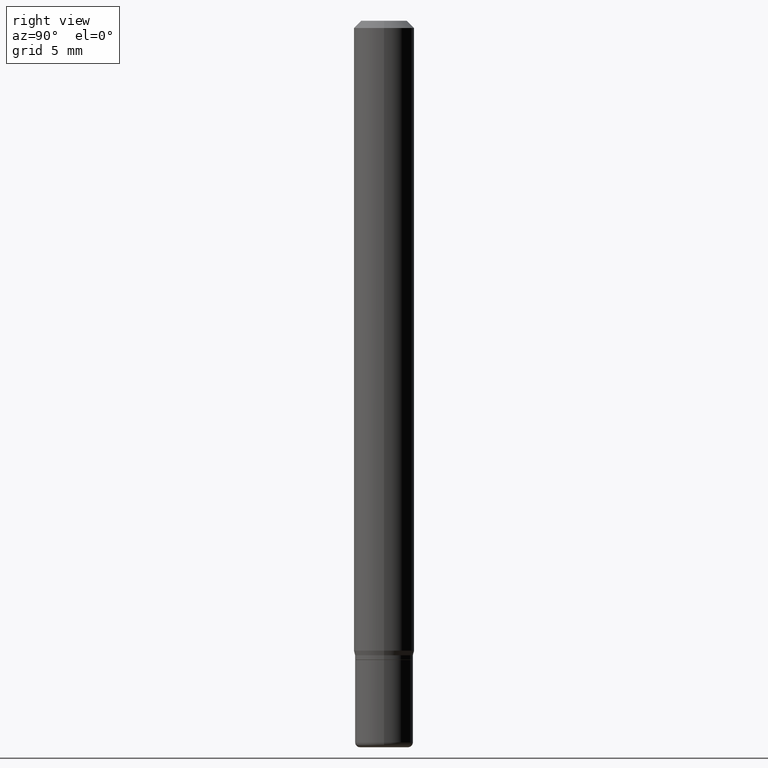
[diagram: clean part render]
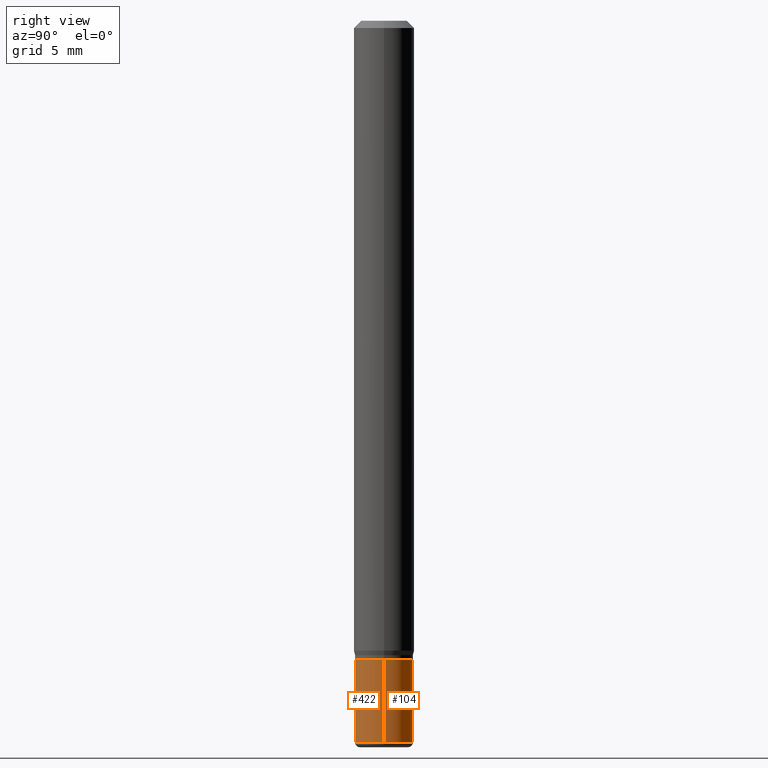
[diagram: same view with one multi-face feature highlighted, each face labeled with its STEP entity id]
A machine part, right view. The highlighted faces form ONE feature: a constant-radius fillet chain: 2 tangent blend faces with common blend radius 1.524 mm. The faces share edges in the B-rep.
Their STEP definitions:
[1] entity #104 (Cylinder):
#15 = DIRECTION ( 'NONE',  ( -2.445468806185136877E-29, 3.491481338843145188E-15, 1.000000000000000000 ) ) ;
#19 = CARTESIAN_POINT ( 'NONE',  ( 0.000000000000000000, 0.000000000000000000, 0.000000000000000000 ) ) ;
#34 = ORIENTED_EDGE ( 'NONE', *, *, #69, .F. ) ;
#51 = CARTESIAN_POINT ( 'NONE',  ( 3.643748521215853910E-29, -5.202307194876288105E-15, -1.490000000000000213 ) ) ;
#55 = VERTEX_POINT ( 'NONE', #382 ) ;
#58 = DIRECTION ( 'NONE',  ( -2.445468806185136877E-29, 3.491481338843145188E-15, 1.000000000000000000 ) ) ;
#67 = CARTESIAN_POINT ( 'NONE',  ( -0.05999999999999997696, 4.263256414560599478E-16, -2.951361054152942362E-30 ) ) ;
#69 = EDGE_CURVE ( 'NONE', #477, #469, #319, .T. ) ;
#94 = AXIS2_PLACEMENT_3D ( 'NONE', #51, #411, #215 ) ;
#95 = EDGE_LOOP ( 'NONE', ( #355, #440, #34, #100 ) ) ;
#100 = ORIENTED_EDGE ( 'NONE', *, *, #126, .F. ) ;
#104 = ADVANCED_FACE ( 'NONE', ( #259 ), #379, .T. ) ;
#126 = EDGE_CURVE ( 'NONE', #403, #477, #402, .T. ) ;
#130 = CIRCLE ( 'NONE', #94, 0.05999999999999994921 ) ;
#139 = DIRECTION ( 'NONE',  ( -2.445468806185136597E-29, 3.491481338843145583E-15, 1.000000000000000000 ) ) ;
#143 = DIRECTION ( 'NONE',  ( -2.445468806185136597E-29, 3.491481338843145583E-15, 1.000000000000000000 ) ) ;
#159 = EDGE_CURVE ( 'NONE', #403, #55, #130, .T. ) ;
#177 = DIRECTION ( 'NONE',  ( 1.000000000000000000, -6.982962677686268288E-15, 0.000000000000000000 ) ) ;
#215 = DIRECTION ( 'NONE',  ( 1.000000000000000000, -6.982962677686273810E-15, 0.000000000000000000 ) ) ;
#231 = VECTOR ( 'NONE', #58, 39.37007874015748143 ) ;
#246 = VECTOR ( 'NONE', #15, 39.37007874015748143 ) ;
#259 = FACE_OUTER_BOUND ( 'NONE', #95, .T. ) ;
#269 = CARTESIAN_POINT ( 'NONE',  ( 0.05999999999999999778, -5.027733127934128282E-15, -1.320000000000000062 ) ) ;
#271 = AXIS2_PLACEMENT_3D ( 'NONE', #19, #143, #458 ) ;
#301 = CARTESIAN_POINT ( 'NONE',  ( -0.05999999999999999778, -4.479205639618560964E-15, -1.320000000000000062 ) ) ;
#303 = CARTESIAN_POINT ( 'NONE',  ( 0.05999999999999994921, -5.621284955537463950E-15, -1.490000000000000213 ) ) ;
#319 = CIRCLE ( 'NONE', #503, 0.05999999999999999778 ) ;
#345 = CARTESIAN_POINT ( 'NONE',  ( 3.228018824164380442E-29, -4.608755367272952437E-15, -1.320000000000000062 ) ) ;
#355 = ORIENTED_EDGE ( 'NONE', *, *, #159, .T. ) ;
#368 = CARTESIAN_POINT ( 'NONE',  ( 0.05999999999999997696, -4.189777606611758449E-16, 2.925706065477560355E-30 ) ) ;
#379 = CYLINDRICAL_SURFACE ( 'NONE', #271, 0.05999999999999997696 ) ;
#380 = EDGE_CURVE ( 'NONE', #55, #469, #499, .T. ) ;
#382 = CARTESIAN_POINT ( 'NONE',  ( -0.05999999999999994921, -4.479205639618560964E-15, -1.490000000000000213 ) ) ;
#402 = LINE ( 'NONE', #368, #246 ) ;
#403 = VERTEX_POINT ( 'NONE', #303 ) ;
#411 = DIRECTION ( 'NONE',  ( -2.445468806185136597E-29, 3.491481338843145583E-15, 1.000000000000000000 ) ) ;
#440 = ORIENTED_EDGE ( 'NONE', *, *, #380, .T. ) ;
#458 = DIRECTION ( 'NONE',  ( 1.000000000000000000, -6.982962677686266711E-15, 4.876176775795935793E-29 ) ) ;
#469 = VERTEX_POINT ( 'NONE', #301 ) ;
#477 = VERTEX_POINT ( 'NONE', #269 ) ;
#499 = LINE ( 'NONE', #67, #231 ) ;
#503 = AXIS2_PLACEMENT_3D ( 'NONE', #345, #139, #177 ) ;
[2] entity #422 (Cylinder):
#15 = DIRECTION ( 'NONE',  ( -2.445468806185136877E-29, 3.491481338843145188E-15, 1.000000000000000000 ) ) ;
#55 = VERTEX_POINT ( 'NONE', #382 ) ;
#58 = DIRECTION ( 'NONE',  ( -2.445468806185136877E-29, 3.491481338843145188E-15, 1.000000000000000000 ) ) ;
#64 = CARTESIAN_POINT ( 'NONE',  ( 0.000000000000000000, 0.000000000000000000, 0.000000000000000000 ) ) ;
#67 = CARTESIAN_POINT ( 'NONE',  ( -0.05999999999999997696, 4.263256414560599478E-16, -2.951361054152942362E-30 ) ) ;
#77 = ORIENTED_EDGE ( 'NONE', *, *, #126, .T. ) ;
#126 = EDGE_CURVE ( 'NONE', #403, #477, #402, .T. ) ;
#136 = AXIS2_PLACEMENT_3D ( 'NONE', #266, #183, #385 ) ;
#183 = DIRECTION ( 'NONE',  ( -2.445468806185136597E-29, 3.491481338843145583E-15, 1.000000000000000000 ) ) ;
#187 = FACE_OUTER_BOUND ( 'NONE', #291, .T. ) ;
#188 = ORIENTED_EDGE ( 'NONE', *, *, #380, .F. ) ;
#204 = CIRCLE ( 'NONE', #392, 0.05999999999999994921 ) ;
#210 = DIRECTION ( 'NONE',  ( 1.000000000000000000, -6.982962677686273810E-15, 0.000000000000000000 ) ) ;
#217 = EDGE_CURVE ( 'NONE', #55, #403, #204, .T. ) ;
#227 = DIRECTION ( 'NONE',  ( -2.445468806185136597E-29, 3.491481338843145583E-15, 1.000000000000000000 ) ) ;
#231 = VECTOR ( 'NONE', #58, 39.37007874015748143 ) ;
#245 = CIRCLE ( 'NONE', #136, 0.05999999999999999778 ) ;
#246 = VECTOR ( 'NONE', #15, 39.37007874015748143 ) ;
#266 = CARTESIAN_POINT ( 'NONE',  ( 3.228018824164380442E-29, -4.608755367272952437E-15, -1.320000000000000062 ) ) ;
#269 = CARTESIAN_POINT ( 'NONE',  ( 0.05999999999999999778, -5.027733127934128282E-15, -1.320000000000000062 ) ) ;
#289 = ORIENTED_EDGE ( 'NONE', *, *, #217, .T. ) ;
#291 = EDGE_LOOP ( 'NONE', ( #188, #289, #77, #430 ) ) ;
#295 = AXIS2_PLACEMENT_3D ( 'NONE', #64, #227, #383 ) ;
#301 = CARTESIAN_POINT ( 'NONE',  ( -0.05999999999999999778, -4.479205639618560964E-15, -1.320000000000000062 ) ) ;
#303 = CARTESIAN_POINT ( 'NONE',  ( 0.05999999999999994921, -5.621284955537463950E-15, -1.490000000000000213 ) ) ;
#313 = EDGE_CURVE ( 'NONE', #469, #477, #245, .T. ) ;
#363 = CARTESIAN_POINT ( 'NONE',  ( 3.643748521215853910E-29, -5.202307194876288105E-15, -1.490000000000000213 ) ) ;
#366 = DIRECTION ( 'NONE',  ( -2.445468806185136597E-29, 3.491481338843145583E-15, 1.000000000000000000 ) ) ;
#368 = CARTESIAN_POINT ( 'NONE',  ( 0.05999999999999997696, -4.189777606611758449E-16, 2.925706065477560355E-30 ) ) ;
#380 = EDGE_CURVE ( 'NONE', #55, #469, #499, .T. ) ;
#382 = CARTESIAN_POINT ( 'NONE',  ( -0.05999999999999994921, -4.479205639618560964E-15, -1.490000000000000213 ) ) ;
#383 = DIRECTION ( 'NONE',  ( 1.000000000000000000, -6.982962677686266711E-15, 4.876176775795935793E-29 ) ) ;
#385 = DIRECTION ( 'NONE',  ( 1.000000000000000000, -6.982962677686268288E-15, 0.000000000000000000 ) ) ;
#392 = AXIS2_PLACEMENT_3D ( 'NONE', #363, #366, #210 ) ;
#402 = LINE ( 'NONE', #368, #246 ) ;
#403 = VERTEX_POINT ( 'NONE', #303 ) ;
#422 = ADVANCED_FACE ( 'NONE', ( #187 ), #424, .T. ) ;
#424 = CYLINDRICAL_SURFACE ( 'NONE', #295, 0.05999999999999997696 ) ;
#430 = ORIENTED_EDGE ( 'NONE', *, *, #313, .F. ) ;
#469 = VERTEX_POINT ( 'NONE', #301 ) ;
#477 = VERTEX_POINT ( 'NONE', #269 ) ;
#499 = LINE ( 'NONE', #67, #231 ) ;